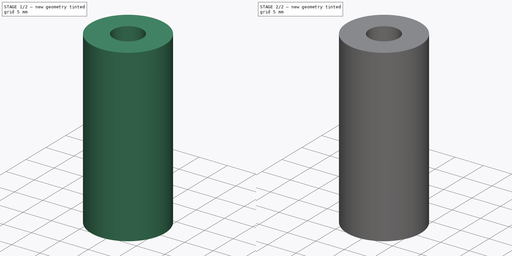
[diagram: build sequence overview — one tinted view per stage of 2, left to right]
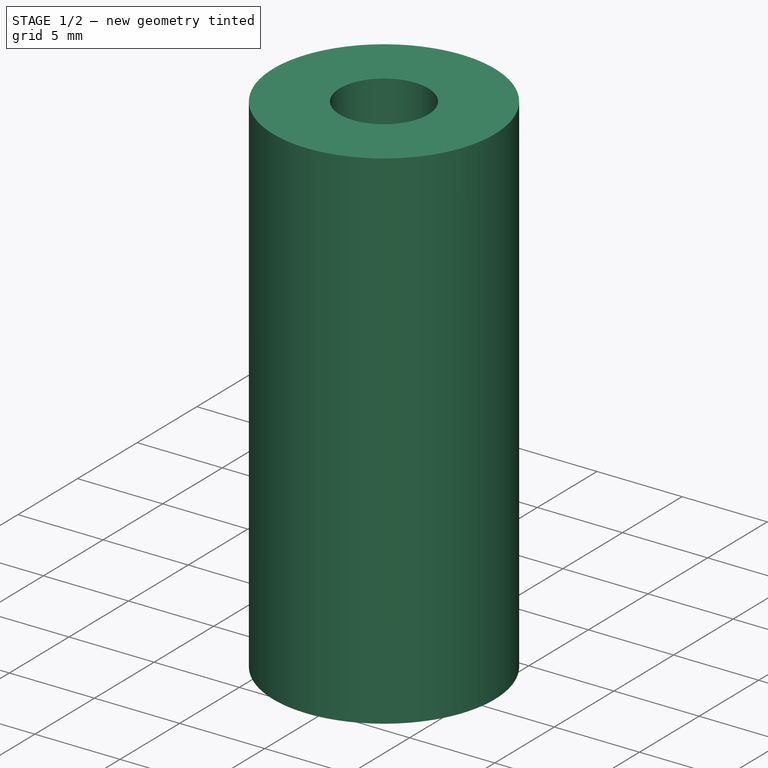
[diagram: stage 1 of 2 — iso view after this stage's code; geometry added in this stage tinted green]
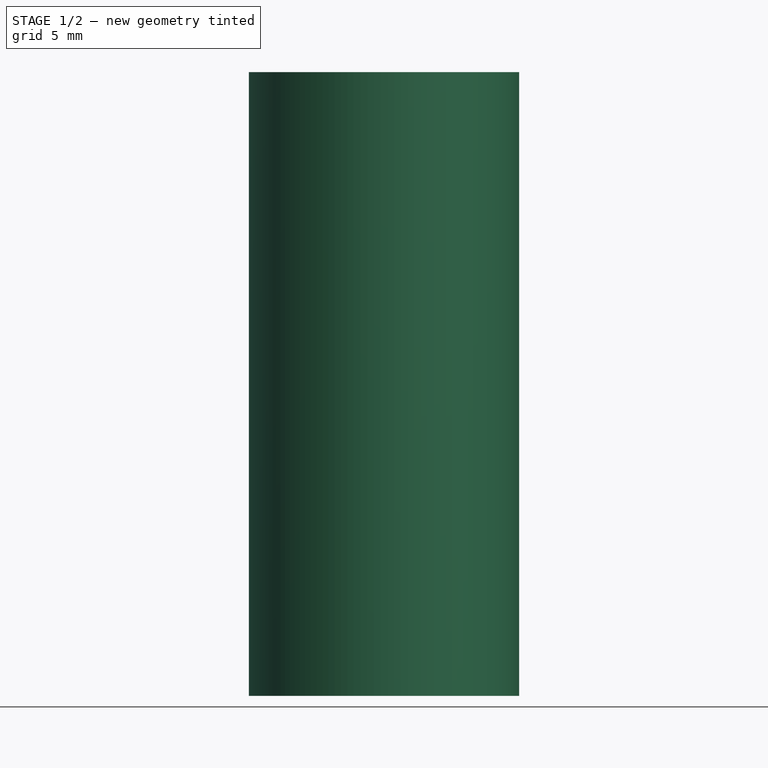
[diagram: stage 1 of 2 — front view after this stage's code; geometry added in this stage tinted green]
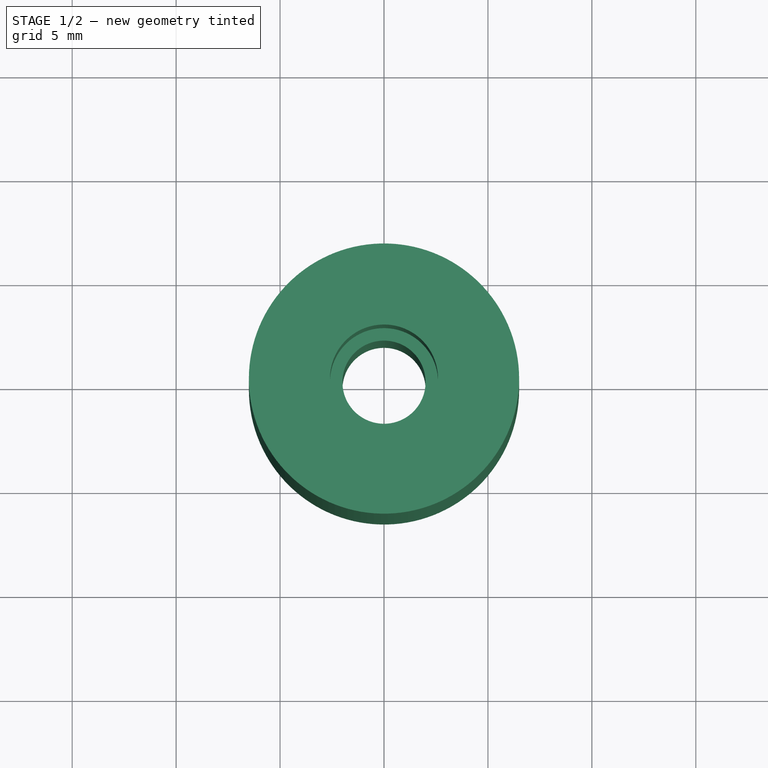
[diagram: stage 1 of 2 — top view after this stage's code; geometry added in this stage tinted green]
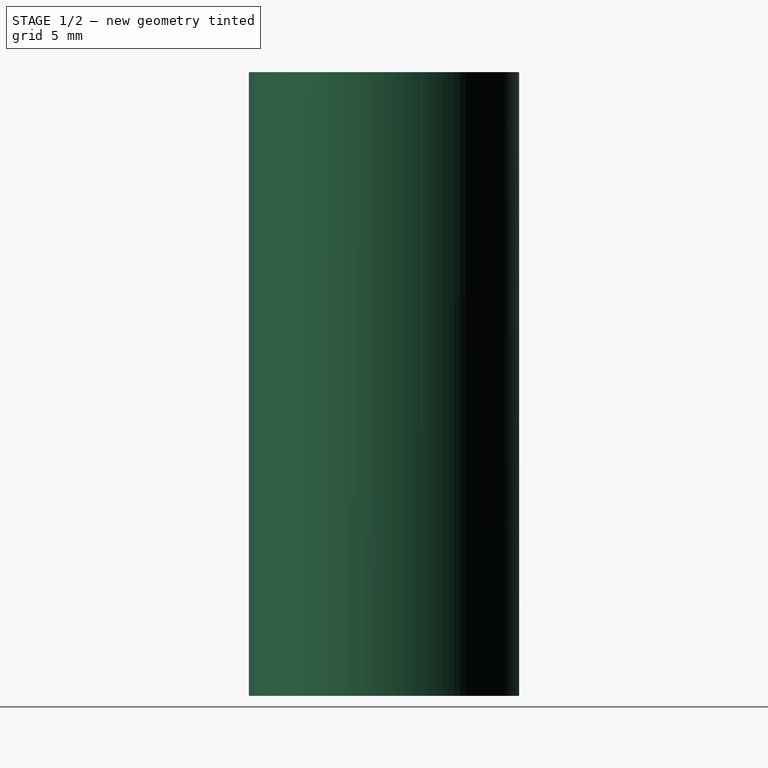
[diagram: stage 1 of 2 — right view after this stage's code; geometry added in this stage tinted green]
FCSTD DOCUMENT  (FreeCAD 0.16R6703 (Git))
Label: cuisinart CSB-77
License: FreeArt
LicenseURL: http://artlibre.org/licence/lal
objects: Sketcher::SketchObject×4, PartDesign::Pocket×3, PartDesign::Pad×1
note: 12 computed .brp shape members not serialized (recipe doc carries the construction recipe); baked Part::Feature solids carry a one-line shape summary decoded from their .brp

FEATURE [Sketcher::SketchObject] Sketch  label="Furo de baixo"
  sketch-geometry (2):
    g0: Circle CenterX=0 CenterY=0 CenterZ=0 NormalX=0 NormalY=0 NormalZ=1 Radius=6.5
    g1: Circle CenterX=0 CenterY=0 CenterZ=0 NormalX=0 NormalY=0 NormalZ=1 Radius=2
  constraints (4):
    c: Coincident(g0,g-1)
    c: Radius(g0) = 6.5
    c: Coincident(g1,g-1)
    c: Radius(g1) = 2
FEATURE [PartDesign::Pad] Pad
  Length = 30
  Length2 = 100
  Sketch = -> Sketch
  Type = 0
FEATURE [Sketcher::SketchObject] Sketch001
  Placement = pos=(0,0,30) rot=(0,0,1;0rad)
  Support = -> Pad [Face4]
  sketch-geometry (1):
    g0: Circle CenterX=0 CenterY=0 CenterZ=0 NormalX=0 NormalY=0 NormalZ=1 Radius=2.6
  constraints (2):
    c: Coincident(g0,g-1)
    c: Radius(g0) = 2.6
FEATURE [PartDesign::Pocket] Pocket  label="Furo do Motor"
  Length = 10
  Sketch = -> Sketch001
  Type = 0
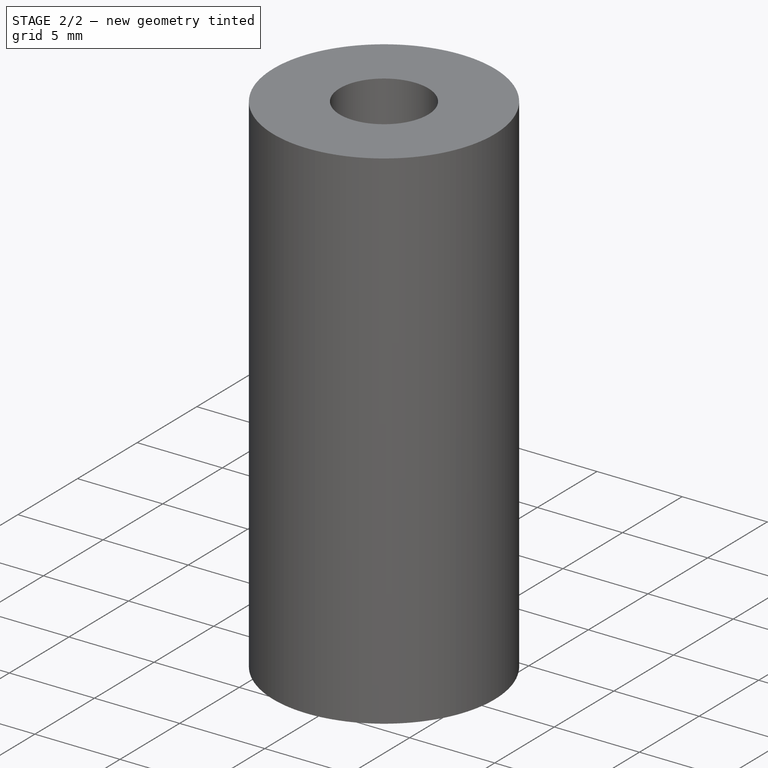
[diagram: stage 2 of 2 — iso view after this stage's code; geometry added in this stage tinted green]
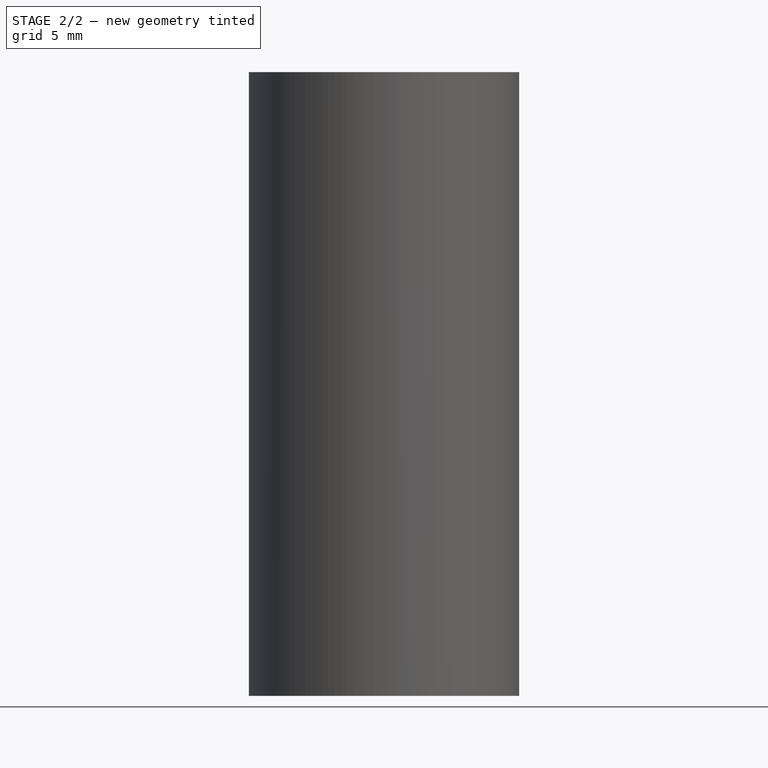
[diagram: stage 2 of 2 — front view after this stage's code; geometry added in this stage tinted green]
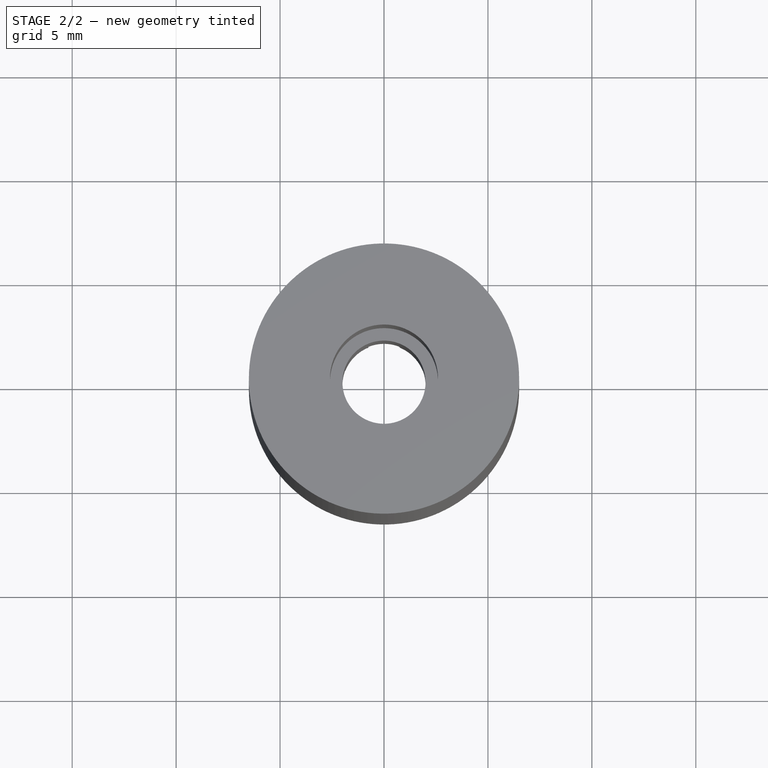
[diagram: stage 2 of 2 — top view after this stage's code; geometry added in this stage tinted green]
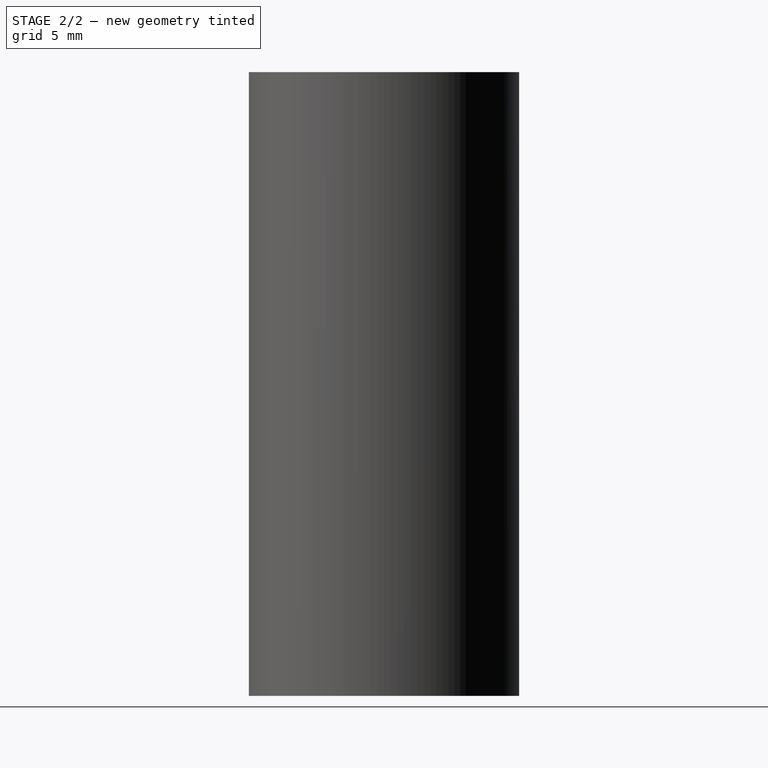
[diagram: stage 2 of 2 — right view after this stage's code; geometry added in this stage tinted green]
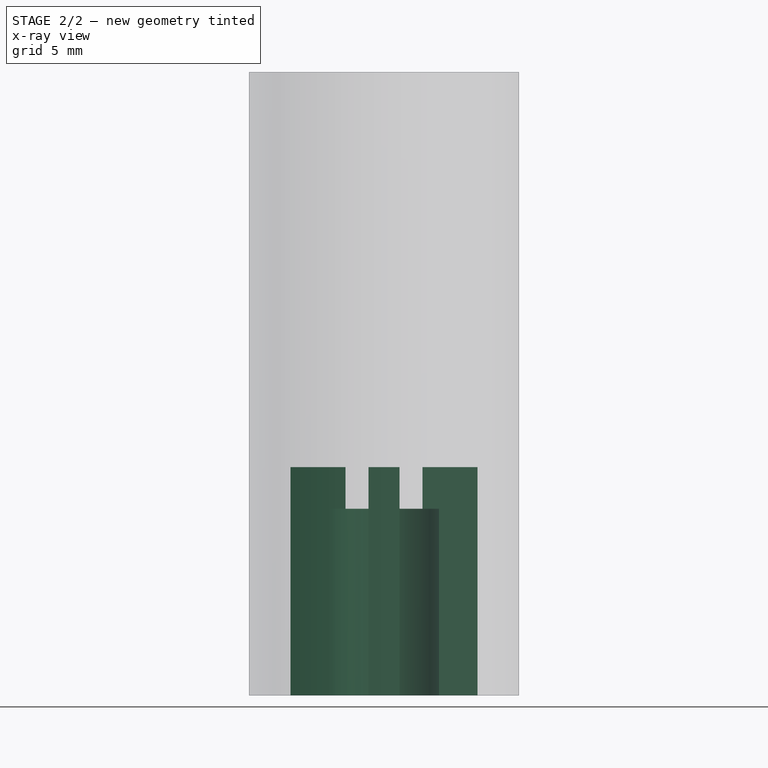
[diagram: stage 2 of 2 — x-ray composite at the front view; earlier geometry ghosted, this stage's added geometry solid]
FEATURE [Sketcher::SketchObject] Sketch002
  Placement = pos=(0,0,0) rot=(1,0,0;3.14159rad)
  Support = -> Pocket [Face2]
  sketch-geometry (1):
    g0: Circle CenterX=0 CenterY=0 CenterZ=0 NormalX=0 NormalY=0 NormalZ=1 Radius=2.75
  constraints (2):
    c: Coincident(g0,g-1)
    c: Radius(g0) = 2.75
FEATURE [PartDesign::Pocket] Pocket001
  Length = 9
  Sketch = -> Sketch002
  Type = 0
FEATURE [Sketcher::SketchObject] Sketch003
  Placement = pos=(0,0,0) rot=(1,0,0;3.14159rad)
  Support = -> Pocket001 [Face2]
  sketch-geometry (8):
    g0: LineSegment StartX=-4.5 StartY=0.75 StartZ=0 EndX=4.5 EndY=0.75 EndZ=0
    g1: LineSegment StartX=4.5 StartY=0.75 StartZ=0 EndX=4.5 EndY=-0.75 EndZ=0
    g2: LineSegment StartX=4.5 StartY=-0.75 StartZ=0 EndX=-4.5 EndY=-0.75 EndZ=0
    g3: LineSegment StartX=-4.5 StartY=-0.75 StartZ=0 EndX=-4.5 EndY=0.75 EndZ=0
    g4: LineSegment StartX=-0.75 StartY=4.5 StartZ=0 EndX=0.75 EndY=4.5 EndZ=0
    g5: LineSegment StartX=0.75 StartY=4.5 StartZ=0 EndX=0.75 EndY=-4.5 EndZ=0
    g6: LineSegment StartX=0.75 StartY=-4.5 StartZ=0 EndX=-0.75 EndY=-4.5 EndZ=0
    g7: LineSegment StartX=-0.75 StartY=-4.5 StartZ=0 EndX=-0.75 EndY=4.5 EndZ=0
  constraints (28):
    c: Coincident(g0,g1)
    c: Coincident(g1,g2)
    c: Coincident(g2,g3)
    c: Coincident(g3,g0)
    c: Horizontal(g0)
    c: Horizontal(g2)
    c: Vertical(g1)
    c: Equal(g0,g2)
    c: Equal(g3,g1)
    c: Symmetric(g0,g0,g-2)
    c: Symmetric(g2,g1,g-2)
    c: DistanceX(g0,g0) = 9
    c: DistanceY(g3,g3) = 1.5
    c: Symmetric(g2,g0,g-1)
    c: Coincident(g4,g5)
    c: Coincident(g5,g6)
    c: Coincident(g6,g7)
    c: Coincident(g7,g4)
    c: Horizontal(g4)
    c: Horizontal(g6)
    c: Vertical(g5)
    c: Vertical(g7)
    c: Equal(g7,g5)
    c: Equal(g4,g6)
    c: Symmetric(g6,g5,g-2)
    c: Symmetric(g6,g4,g-1)
    c: DistanceY(g5,g5) = 9
    c: DistanceX(g4,g4) = 1.5
FEATURE [PartDesign::Pocket] Pocket002
  Length = 11
  Sketch = -> Sketch003
  Type = 0
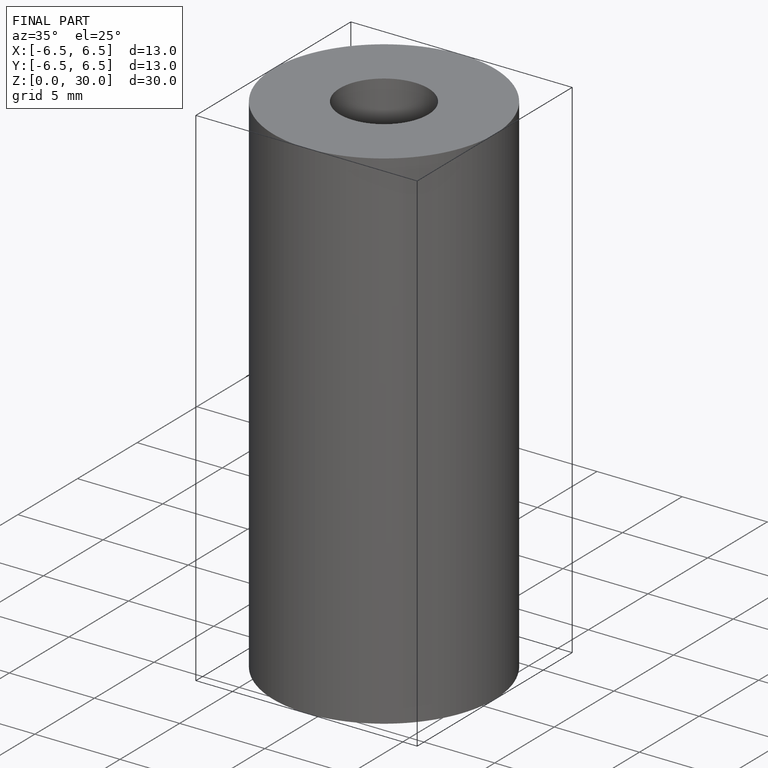
[diagram: finished part — iso view with bounding-box wireframe]
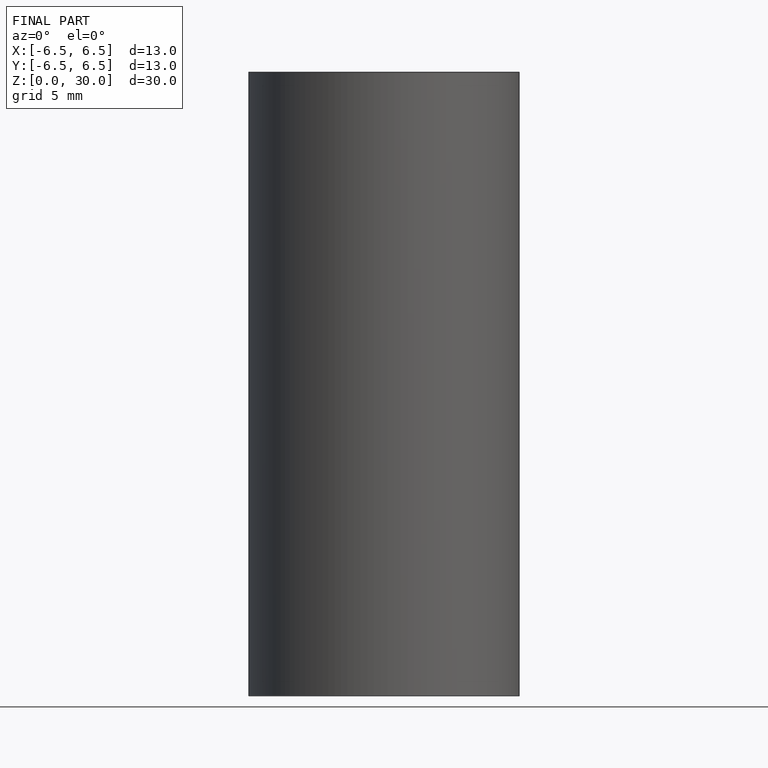
[diagram: finished part — front view with bounding-box wireframe]
